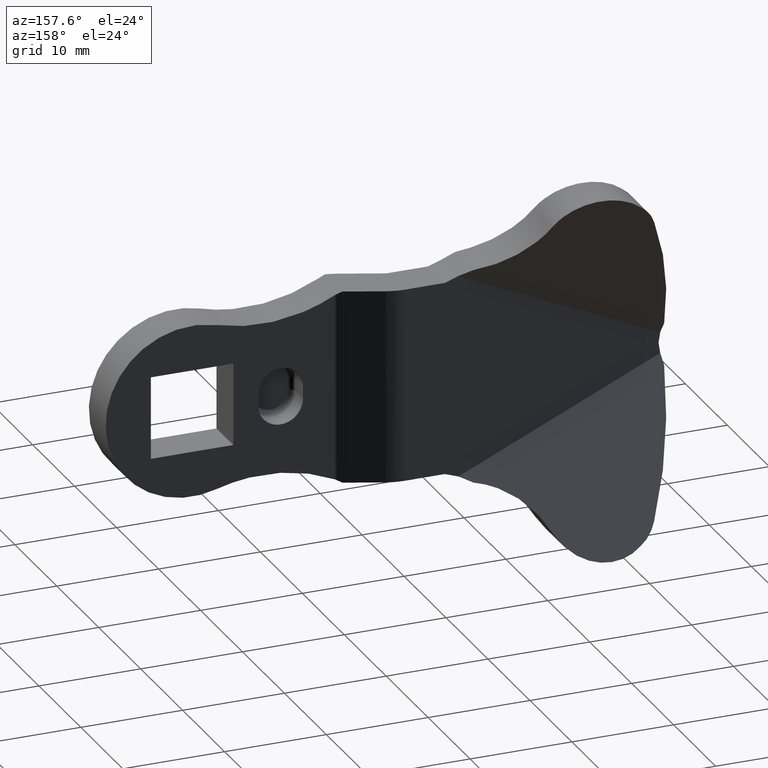
[diagram: clean part render]
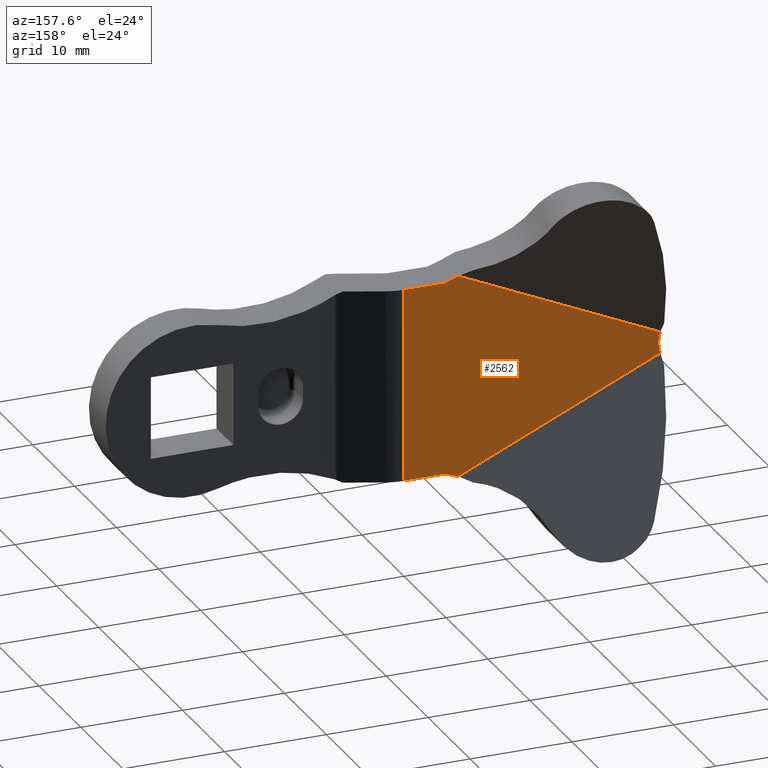
[diagram: same view with one face highlighted and labeled with its STEP entity id]
A machine part, auxiliary view. The second image highlights one B-rep face of the part: STEP entity #2562.
In plain terms, the highlighted face is a freeform B-spline surface patch.
Its self-contained STEP definition (entity closure, byte-faithful):
#247=CARTESIAN_POINT('',(-20.000000583793451,0.0,-9.500000451225791));
#248=VERTEX_POINT('',#247);
#264=CARTESIAN_POINT('',(-20.000000583793451,0.0,9.500000451225791));
#265=VERTEX_POINT('',#264);
#266=CARTESIAN_POINT('',(-20.000000583793451,0.0,9.500000451225791));
#267=CARTESIAN_POINT('',(-20.000000583793451,0.0,-9.500000451225791));
#268=QUASI_UNIFORM_CURVE('',1,(#266,#267),.UNSPECIFIED.,.F.,.U.);
#269=EDGE_CURVE('',#265,#248,#268,.T.);
#960=CARTESIAN_POINT('',(-44.999985159564048,0.0,-1.421085E-014));
#961=VERTEX_POINT('',#960);
#967=CARTESIAN_POINT('',(-45.168823407492603,-4.336809E-016,-1.044820188316144));
#968=VERTEX_POINT('',#967);
#969=CARTESIAN_POINT('',(-44.999985159564048,0.0,-1.421085E-014));
#970=CARTESIAN_POINT('',(-45.168823407492603,-4.336809E-016,-1.044820188316144));
#971=QUASI_UNIFORM_CURVE('',1,(#969,#970),.UNSPECIFIED.,.F.,.U.);
#972=EDGE_CURVE('',#961,#968,#971,.T.);
#1353=CARTESIAN_POINT('',(-25.333808491049400,0.0,-9.964739145604259));
#1354=VERTEX_POINT('',#1353);
#1368=CARTESIAN_POINT('',(-23.999335561343749,0.0,-9.500333135645930));
#1369=VERTEX_POINT('',#1368);
#1370=CARTESIAN_POINT('',(-23.999335561343742,0.0,-9.500333135645944));
#1371=CARTESIAN_POINT('',(-24.679130211114607,0.0,-9.696450135147101));
#1372=CARTESIAN_POINT('',(-25.333808491049400,0.0,-9.964739145604259));
#1380=(BOUNDED_CURVE()B_SPLINE_CURVE(2,(#1370,#1371,#1372),.UNSPECIFIED.,.F.,.U.)CURVE()GEOMETRIC_REPRESENTATION_ITEM()QUASI_UNIFORM_CURVE()RATIONAL_B_SPLINE_CURVE((1.0,0.998540726692007,1.0))REPRESENTATION_ITEM(''));
#1381=EDGE_CURVE('',#1369,#1354,#1380,.T.);
#1426=CARTESIAN_POINT('',(-23.999335561343749,0.0,-9.500000451225791));
#1427=VERTEX_POINT('',#1426);
#1428=CARTESIAN_POINT('',(-23.999335561343749,0.0,-9.500000451225791));
#1429=CARTESIAN_POINT('',(-23.999335561343749,0.0,-9.500333135645930));
#1430=QUASI_UNIFORM_CURVE('',1,(#1428,#1429),.UNSPECIFIED.,.F.,.U.);
#1431=EDGE_CURVE('',#1427,#1369,#1430,.T.);
#1494=CARTESIAN_POINT('',(-23.999335561343749,0.0,9.500333135645869));
#1495=VERTEX_POINT('',#1494);
#1501=CARTESIAN_POINT('',(-25.333808491049400,0.0,9.964739145604240));
#1502=VERTEX_POINT('',#1501);
#1503=CARTESIAN_POINT('',(-25.333808491049400,0.0,9.964739145604240));
#1504=CARTESIAN_POINT('',(-24.679130211114654,0.0,9.696450135147018));
#1505=CARTESIAN_POINT('',(-23.999335561343759,0.0,9.500333135645851));
#1513=(BOUNDED_CURVE()B_SPLINE_CURVE(2,(#1503,#1504,#1505),.UNSPECIFIED.,.F.,.U.)CURVE()GEOMETRIC_REPRESENTATION_ITEM()QUASI_UNIFORM_CURVE()RATIONAL_B_SPLINE_CURVE((1.0,0.998540726692007,1.0))REPRESENTATION_ITEM(''));
#1514=EDGE_CURVE('',#1502,#1495,#1513,.T.);
#1544=CARTESIAN_POINT('',(-23.999329191121799,0.0,9.500000451225791));
#1545=VERTEX_POINT('',#1544);
#1551=CARTESIAN_POINT('',(-23.999335561343749,0.0,9.500333135645869));
#1552=CARTESIAN_POINT('',(-23.999329191121799,0.0,9.500000451225791));
#1553=QUASI_UNIFORM_CURVE('',1,(#1551,#1552),.UNSPECIFIED.,.F.,.U.);
#1554=EDGE_CURVE('',#1495,#1545,#1553,.T.);
#2208=CARTESIAN_POINT('',(-23.999329191121799,0.0,9.500000451225791));
#2209=CARTESIAN_POINT('',(-20.000000583793451,0.0,9.500000451225791));
#2210=QUASI_UNIFORM_CURVE('',1,(#2208,#2209),.UNSPECIFIED.,.F.,.U.);
#2211=EDGE_CURVE('',#1545,#265,#2210,.T.);
#2237=CARTESIAN_POINT('',(-23.999335561343749,0.0,-9.500000451225791));
#2238=CARTESIAN_POINT('',(-20.000000583793451,0.0,-9.500000451225791));
#2239=QUASI_UNIFORM_CURVE('',1,(#2237,#2238),.UNSPECIFIED.,.F.,.U.);
#2240=EDGE_CURVE('',#1427,#248,#2239,.T.);
#2404=CARTESIAN_POINT('',(-25.333808491049400,0.0,-9.964739145604259));
#2405=CARTESIAN_POINT('',(-45.168823407492603,-4.336809E-016,-1.044820188316144));
#2406=QUASI_UNIFORM_CURVE('',1,(#2404,#2405),.UNSPECIFIED.,.F.,.U.);
#2407=EDGE_CURVE('',#1354,#968,#2406,.T.);
#2421=CARTESIAN_POINT('',(-45.168823407492603,-4.336809E-016,1.044820188316136));
#2422=VERTEX_POINT('',#2421);
#2423=CARTESIAN_POINT('',(-45.168823407492603,-4.336809E-016,1.044820188316136));
#2424=CARTESIAN_POINT('',(-25.333808491049400,0.0,9.964739145604240));
#2425=QUASI_UNIFORM_CURVE('',1,(#2423,#2424),.UNSPECIFIED.,.F.,.U.);
#2426=EDGE_CURVE('',#2422,#1502,#2425,.T.);
#2540=CARTESIAN_POINT('',(-46.426006058754297,0.0,10.960216289337129));
#2541=CARTESIAN_POINT('',(-46.426006058754297,0.0,-10.960215576603471));
#2542=CARTESIAN_POINT('',(-18.742817257451300,0.0,10.960216289337129));
#2543=CARTESIAN_POINT('',(-18.742817257451300,0.0,-10.960215576603471));
#2544=B_SPLINE_SURFACE_WITH_KNOTS('',1,1,((#2540,#2542),(#2541,#2543)),.UNSPECIFIED.,.F.,.F.,.U.,(2,2),(2,2),(0.0,21.920431865940589),(0.0,27.683188801303000),.UNSPECIFIED.);
#2545=ORIENTED_EDGE('',*,*,#2211,.T.);
#2546=ORIENTED_EDGE('',*,*,#269,.T.);
#2547=ORIENTED_EDGE('',*,*,#2240,.F.);
#2548=ORIENTED_EDGE('',*,*,#1431,.T.);
#2549=ORIENTED_EDGE('',*,*,#1381,.T.);
#2550=ORIENTED_EDGE('',*,*,#2407,.T.);
#2551=ORIENTED_EDGE('',*,*,#972,.F.);
#2552=CARTESIAN_POINT('',(-45.168823407492603,-4.336809E-016,1.044820188316136));
#2553=CARTESIAN_POINT('',(-44.999985159564048,0.0,-1.421085E-014));
#2554=QUASI_UNIFORM_CURVE('',1,(#2552,#2553),.UNSPECIFIED.,.F.,.U.);
#2555=EDGE_CURVE('',#2422,#961,#2554,.T.);
#2556=ORIENTED_EDGE('',*,*,#2555,.F.);
#2557=ORIENTED_EDGE('',*,*,#2426,.T.);
#2558=ORIENTED_EDGE('',*,*,#1514,.T.);
#2559=ORIENTED_EDGE('',*,*,#1554,.T.);
#2560=EDGE_LOOP('',(#2545,#2546,#2547,#2548,#2549,#2550,#2551,#2556,#2557,#2558,#2559));
#2561=FACE_OUTER_BOUND('',#2560,.T.);
#2562=ADVANCED_FACE('',(#2561),#2544,.F.);